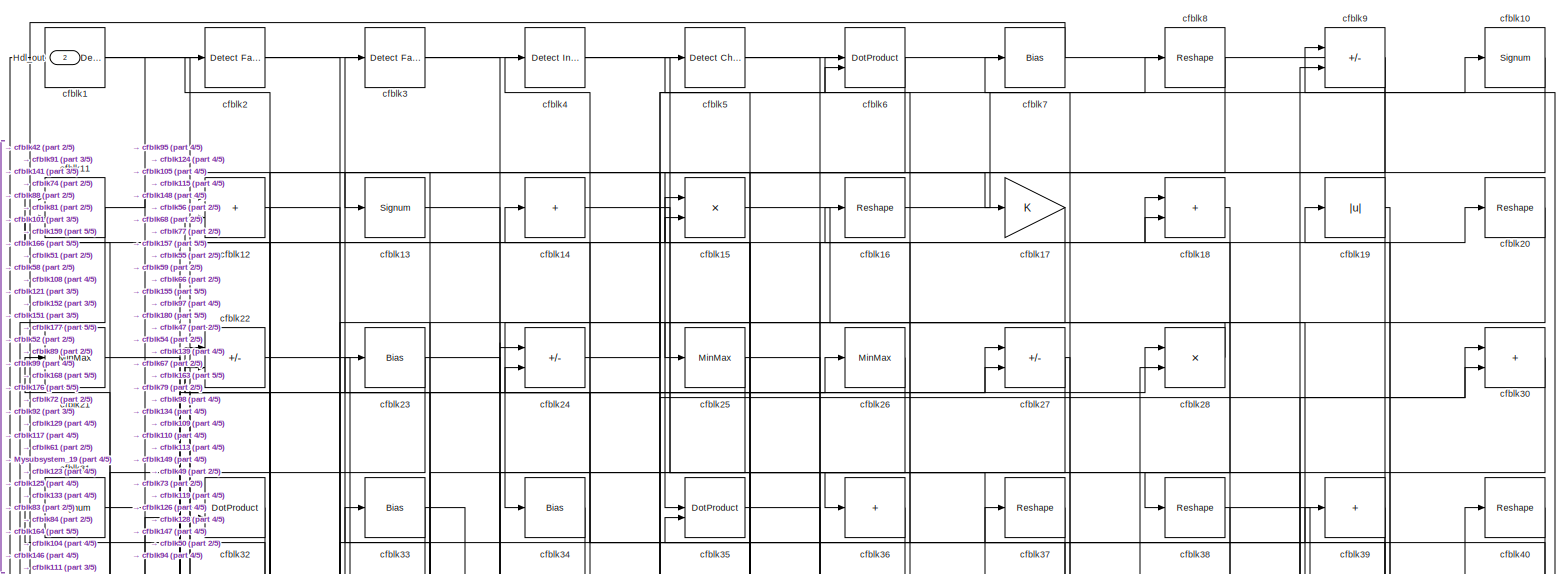
[diagram: root canvas - part 1/5, full width, top band]
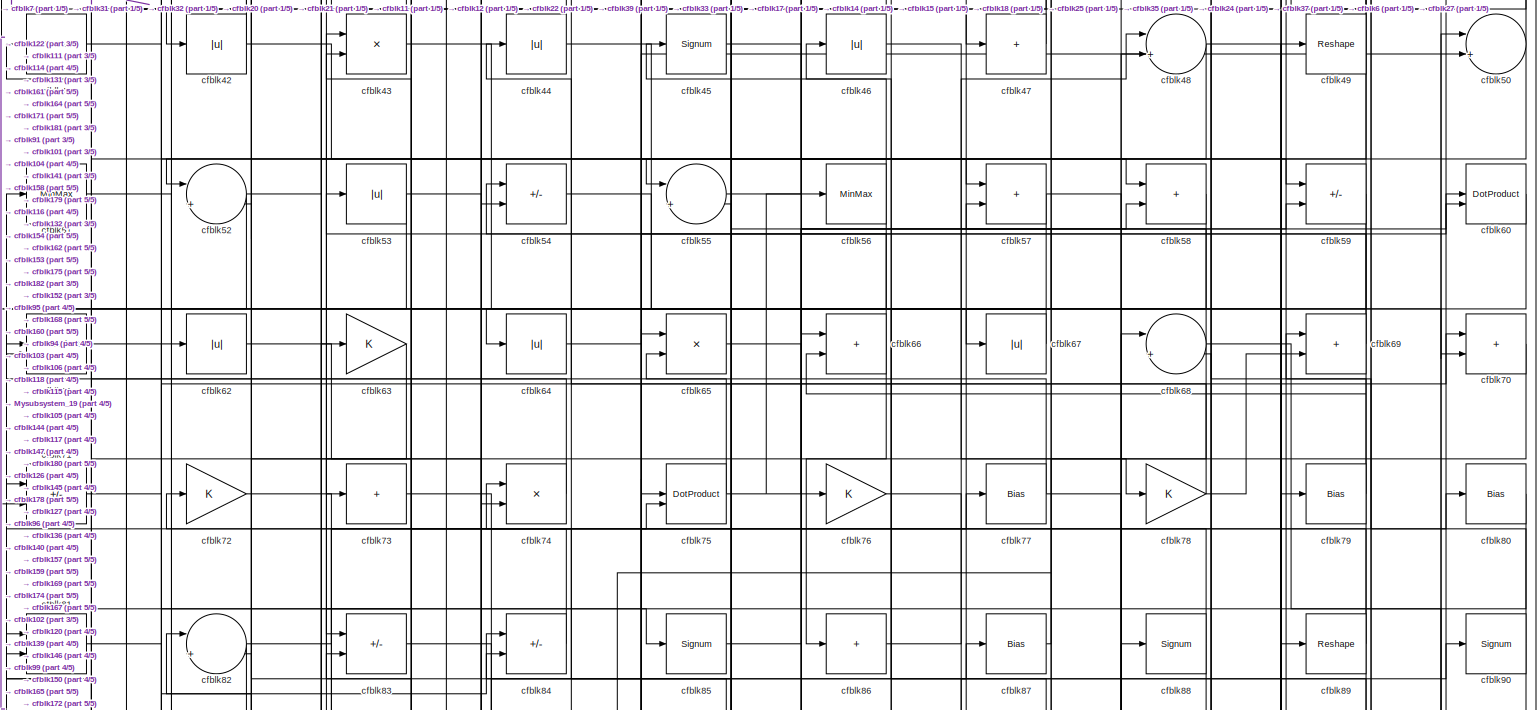
[diagram: root canvas - part 2/5, full width, middle band]
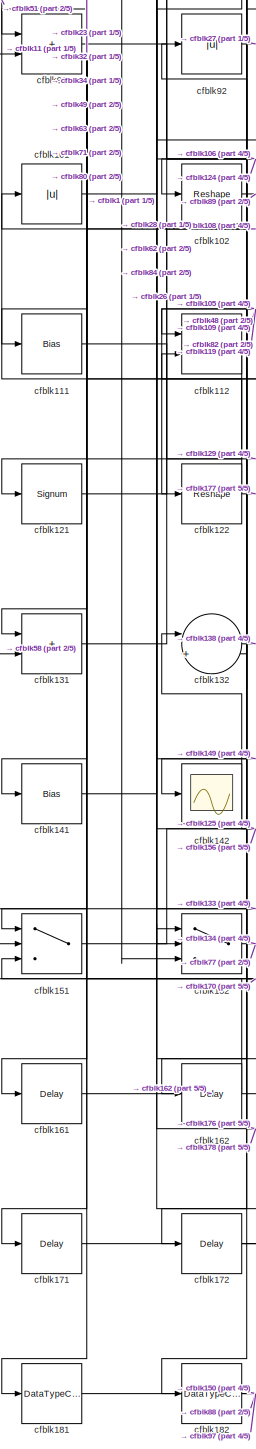
[diagram: root canvas - part 3/5, bottom left region]
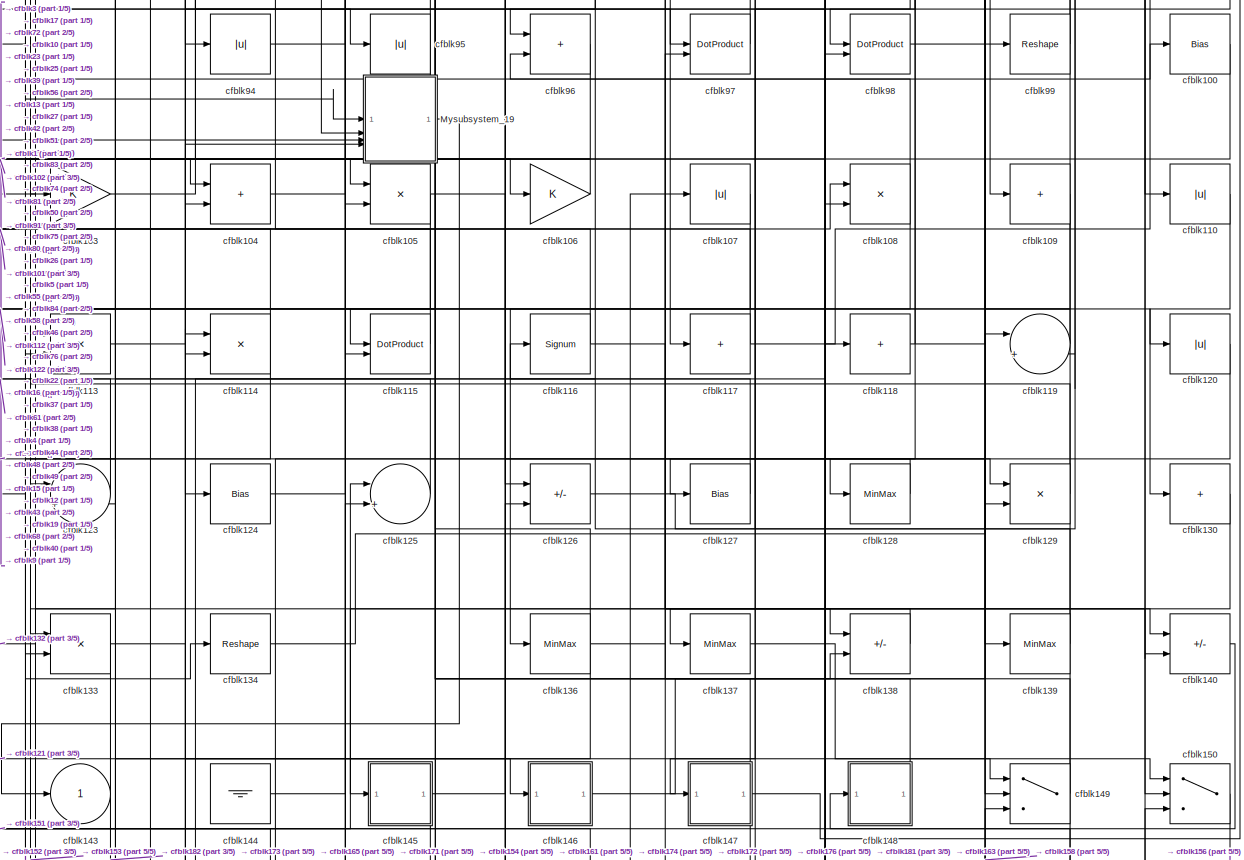
[diagram: root canvas - part 4/5, full width, middle band]
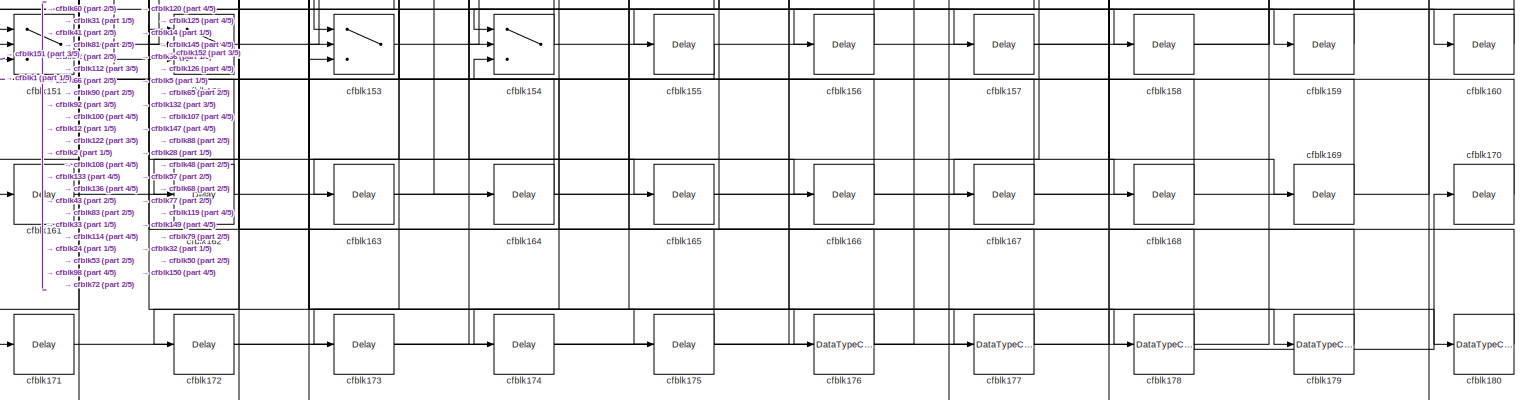
[diagram: root canvas - part 5/5, full width, bottom band]
MODEL slx_0a6103c44369
KIND model
CONFIG AbsTol = auto
CONFIG EnableMultiTasking = off
CONFIG FixedStep = auto
CONFIG MaxStep = auto
CONFIG MinStep = auto
CONFIG RelTol = 1e-3
CONFIG SampleTimeConstraint = Unconstrained
CONFIG SolverName = VariableStepAuto
CONFIG StartTime = 0.0
CONFIG StopTime = 10.0
BLOCK [Outport] Hdl_out
  OutDataTypeStr = uint8
  Port = 2
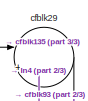
[diagram: Mysubsystem_19 - part 1/3, top right region]
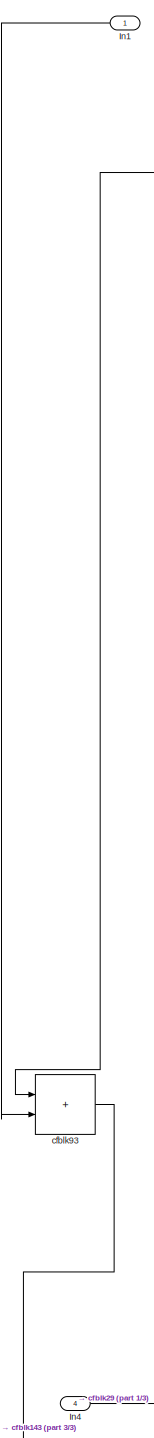
[diagram: Mysubsystem_19 - part 2/3, left side, full height]
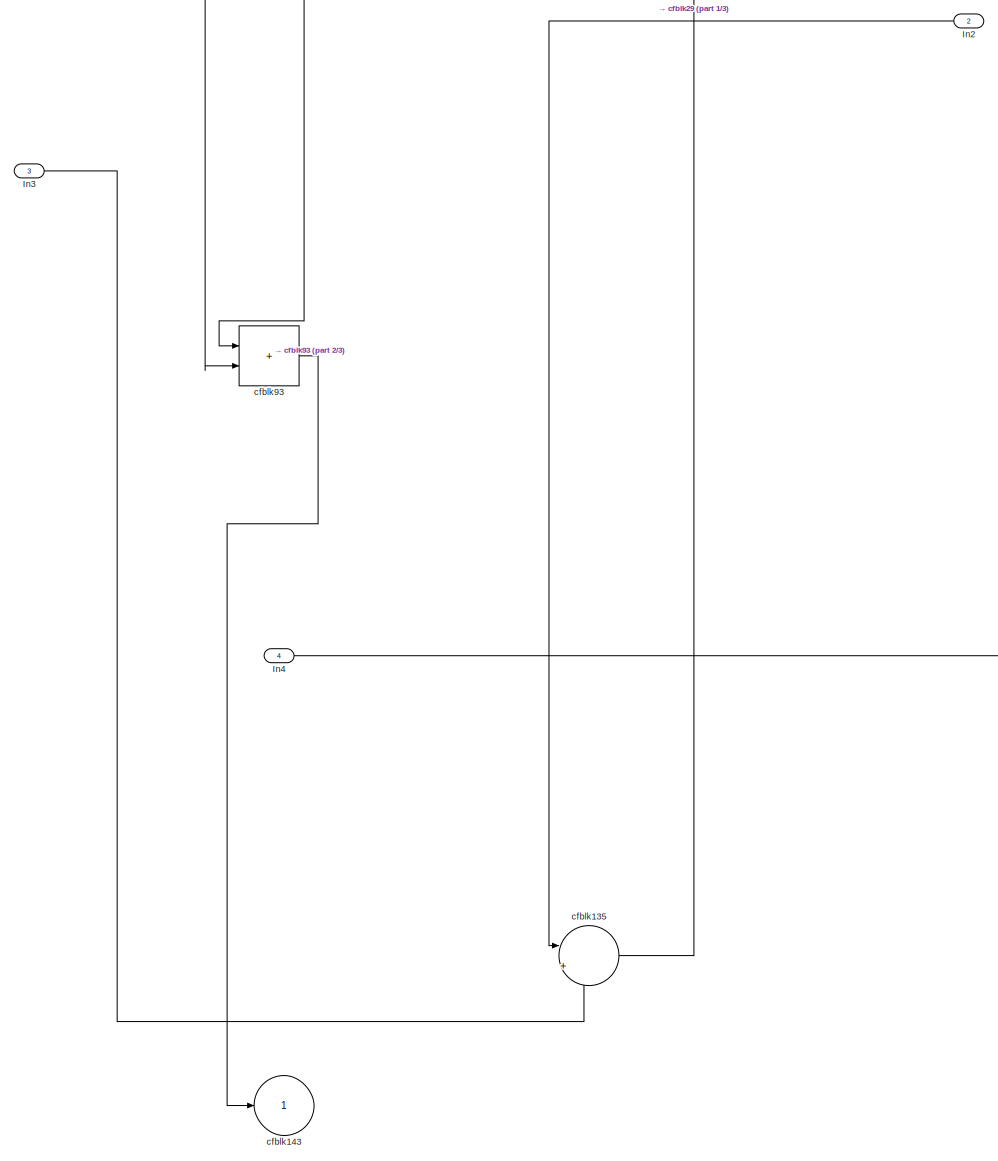
[diagram: Mysubsystem_19 - part 3/3, full width, bottom band]
BLOCK [SubSystem] Mysubsystem_19
  RTWFcnName = Mysubsystem_19
  RTWFcnNameOpts = User specified
  RTWFileNameOpts = Use function name
  RTWSystemCode = Reusable function
  TreatAsAtomicUnit = on
BLOCK [Inport] Mysubsystem_19/In1
BLOCK [Inport] Mysubsystem_19/In2
  Port = 2
BLOCK [Inport] Mysubsystem_19/In3
  Port = 3
BLOCK [Inport] Mysubsystem_19/In4
  Port = 4
BLOCK [Sum] Mysubsystem_19/cfblk135
  Inputs = |++
BLOCK [Outport] Mysubsystem_19/cfblk143
  VectorParamsAs1DForOutWhenUnconnected = off
BLOCK [Sum] Mysubsystem_19/cfblk29
  Inputs = |++
BLOCK [Sum] Mysubsystem_19/cfblk93
  IconShape = rectangular
BLOCK [Reference] cfblk1  REF=simulink/Logic and Bit
Operations/Detect
Decrease
  LibrarySourceBlock = hdlsllib/Logic and Bit\nOperations/Detect\nDecrease
  SourceBlock = simulink/Logic and Bit\nOperations/Detect\nDecrease
  SourceType = Detect Decrease
BLOCK [Signum] cfblk10
BLOCK [Bias] cfblk100
  Bias = 0.0
  SaturateOnIntegerOverflow = off
BLOCK [Abs] cfblk101
  OutDataTypeStr = uint8
  SaturateOnIntegerOverflow = off
BLOCK [Reshape] cfblk102
BLOCK [Gain] cfblk103
  OutDataTypeStr = uint8
BLOCK [Sum] cfblk104
  IconShape = rectangular
  OutDataTypeStr = uint8
BLOCK [Product] cfblk105
  Inputs = */
  OutDataTypeStr = uint8
  RndMeth = Zero
  SaturateOnIntegerOverflow = on
BLOCK [Gain] cfblk106
  OutDataTypeStr = uint8
BLOCK [Abs] cfblk107
  OutDataTypeStr = uint8
  SaturateOnIntegerOverflow = off
BLOCK [Product] cfblk108
  Inputs = */
  OutDataTypeStr = uint8
  RndMeth = Zero
  SaturateOnIntegerOverflow = on
BLOCK [Sum] cfblk109
  IconShape = rectangular
  Inputs = +
  OutDataTypeStr = uint8
BLOCK [Sum] cfblk11
  IconShape = rectangular
  OutDataTypeStr = uint8
BLOCK [Abs] cfblk110
  OutDataTypeStr = uint8
  SaturateOnIntegerOverflow = off
BLOCK [Bias] cfblk111
  Bias = 0.0
  SaturateOnIntegerOverflow = off
BLOCK [Product] cfblk112
  Inputs = */
  OutDataTypeStr = uint8
  RndMeth = Zero
  SaturateOnIntegerOverflow = on
BLOCK [Product] cfblk113
  Inputs = */
  OutDataTypeStr = uint8
  RndMeth = Zero
  SaturateOnIntegerOverflow = on
BLOCK [Product] cfblk114
  Inputs = */
  OutDataTypeStr = uint8
  RndMeth = Zero
  SaturateOnIntegerOverflow = on
BLOCK [DotProduct] cfblk115
  OutDataTypeStr = uint8
BLOCK [Signum] cfblk116
BLOCK [Sum] cfblk117
  IconShape = rectangular
  Inputs = +
  OutDataTypeStr = uint8
BLOCK [Sum] cfblk118
  IconShape = rectangular
  Inputs = +
  OutDataTypeStr = uint8
BLOCK [Sum] cfblk119
  Inputs = |++
  OutDataTypeStr = uint8
BLOCK [Sum] cfblk12
  IconShape = rectangular
  OutDataTypeStr = uint8
BLOCK [Abs] cfblk120
  OutDataTypeStr = uint8
  SaturateOnIntegerOverflow = off
BLOCK [Signum] cfblk121
BLOCK [Reshape] cfblk122
BLOCK [Sum] cfblk123
  Inputs = |++
  OutDataTypeStr = uint8
BLOCK [Bias] cfblk124
  Bias = 0.0
  SaturateOnIntegerOverflow = off
BLOCK [Sum] cfblk125
  Inputs = |++
  OutDataTypeStr = uint8
BLOCK [Sum] cfblk126
  IconShape = rectangular
  Inputs = +-
  OutDataTypeStr = uint8
BLOCK [Bias] cfblk127
  Bias = 0.0
  SaturateOnIntegerOverflow = off
BLOCK [MinMax] cfblk128
  OutDataTypeStr = uint8
BLOCK [Product] cfblk129
  Inputs = */
  OutDataTypeStr = uint8
  RndMeth = Zero
  SaturateOnIntegerOverflow = on
BLOCK [Signum] cfblk13
BLOCK [Sum] cfblk130
  IconShape = rectangular
  Inputs = +
  OutDataTypeStr = uint8
BLOCK [Sum] cfblk131
  IconShape = rectangular
  OutDataTypeStr = uint8
BLOCK [Sum] cfblk132
  Inputs = |++
  OutDataTypeStr = uint8
BLOCK [Product] cfblk133
  Inputs = */
  OutDataTypeStr = uint8
  RndMeth = Zero
  SaturateOnIntegerOverflow = on
BLOCK [Reshape] cfblk134
BLOCK [MinMax] cfblk136
  OutDataTypeStr = uint8
BLOCK [MinMax] cfblk137
  OutDataTypeStr = uint8
BLOCK [Sum] cfblk138
  IconShape = rectangular
  Inputs = +-
  OutDataTypeStr = uint8
BLOCK [MinMax] cfblk139
  OutDataTypeStr = uint8
BLOCK [Sum] cfblk14
  IconShape = rectangular
  Inputs = +
  OutDataTypeStr = uint8
BLOCK [Sum] cfblk140
  IconShape = rectangular
  Inputs = +-
  OutDataTypeStr = uint8
BLOCK [Bias] cfblk141
  Bias = 0.0
  SaturateOnIntegerOverflow = off
BLOCK [Scope] cfblk142
  Floating = off
  NumInputPorts = 1
  ScopeSpecificationString = Simulink.scopes.TimeScopeBlockCfg('CurrentConfiguration', extmgr.ConfigurationSet(extmgr.Configuration('Core','General UI',true),extmgr.Configuration('Core','Source UI',true),extmgr.Configuration('Sources','WiredSimulink',true,'DataLoggingVariableName','ScopeData2','DataLoggingSaveFormat','Array','DataLoggingLimitDataPoints',true,'DataLoggingDecimation','1'),extmgr.Configuration('Visuals','Time Do...<+868ch>
BLOCK [Outport] cfblk143
  OutDataTypeStr = uint8
  VectorParamsAs1DForOutWhenUnconnected = off
BLOCK [Ground] cfblk144
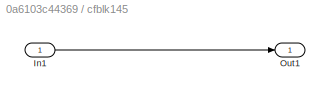
BLOCK [SubSystem] cfblk145
  LibrarySourceBlock = hdlsllib/Ports &\nSubsystems/Subsystem
BLOCK [Inport] cfblk145/In1
BLOCK [Outport] cfblk145/Out1
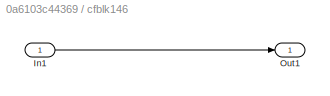
BLOCK [SubSystem] cfblk146
  LibrarySourceBlock = hdlsllib/Ports &\nSubsystems/Subsystem
BLOCK [Inport] cfblk146/In1
BLOCK [Outport] cfblk146/Out1
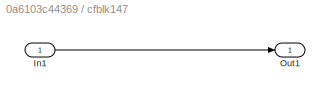
BLOCK [SubSystem] cfblk147
  LibrarySourceBlock = hdlsllib/Ports &\nSubsystems/Subsystem
BLOCK [Inport] cfblk147/In1
BLOCK [Outport] cfblk147/Out1
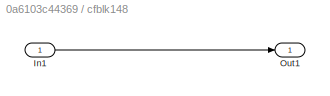
BLOCK [SubSystem] cfblk148
  LibrarySourceBlock = hdlsllib/Ports &\nSubsystems/Subsystem
BLOCK [Inport] cfblk148/In1
BLOCK [Outport] cfblk148/Out1
BLOCK [Switch] cfblk149
  InputSameDT = off
  OutDataTypeStr = uint8
  SaturateOnIntegerOverflow = off
BLOCK [Product] cfblk15
  Inputs = */
  OutDataTypeStr = uint8
  RndMeth = Zero
  SaturateOnIntegerOverflow = on
BLOCK [Switch] cfblk150
  InputSameDT = off
  OutDataTypeStr = uint8
  SaturateOnIntegerOverflow = off
BLOCK [Switch] cfblk151
  InputSameDT = off
  OutDataTypeStr = uint8
  SaturateOnIntegerOverflow = off
BLOCK [Switch] cfblk152
  InputSameDT = off
  OutDataTypeStr = uint8
  SaturateOnIntegerOverflow = off
BLOCK [Switch] cfblk153
  InputSameDT = off
  OutDataTypeStr = uint8
  SaturateOnIntegerOverflow = off
BLOCK [Switch] cfblk154
  InputSameDT = off
  OutDataTypeStr = uint8
  SaturateOnIntegerOverflow = off
BLOCK [Delay] cfblk155
  InputPortMap = u0
  SampleTime = 1
BLOCK [Delay] cfblk156
  InputPortMap = u0
  SampleTime = 1
BLOCK [Delay] cfblk157
  InputPortMap = u0
  SampleTime = 1
BLOCK [Delay] cfblk158
  InputPortMap = u0
  SampleTime = 1
BLOCK [Delay] cfblk159
  InputPortMap = u0
  SampleTime = 1
BLOCK [Reshape] cfblk16
BLOCK [Delay] cfblk160
  InputPortMap = u0
  SampleTime = 1
BLOCK [Delay] cfblk161
  InputPortMap = u0
  SampleTime = 1
BLOCK [Delay] cfblk162
  InputPortMap = u0
  SampleTime = 1
BLOCK [Delay] cfblk163
  InputPortMap = u0
  SampleTime = 1
BLOCK [Delay] cfblk164
  InputPortMap = u0
  SampleTime = 1
BLOCK [Delay] cfblk165
  InputPortMap = u0
  SampleTime = 1
BLOCK [Delay] cfblk166
  InputPortMap = u0
  SampleTime = 1
BLOCK [Delay] cfblk167
  InputPortMap = u0
  SampleTime = 1
BLOCK [Delay] cfblk168
  InputPortMap = u0
  SampleTime = 1
BLOCK [Delay] cfblk169
  InputPortMap = u0
  SampleTime = 1
BLOCK [Gain] cfblk17
  OutDataTypeStr = uint8
BLOCK [Delay] cfblk170
  InputPortMap = u0
  SampleTime = 1
BLOCK [Delay] cfblk171
  InputPortMap = u0
  SampleTime = 1
BLOCK [Delay] cfblk172
  InputPortMap = u0
  SampleTime = 1
BLOCK [Delay] cfblk173
  InputPortMap = u0
  SampleTime = 1
BLOCK [Delay] cfblk174
  InputPortMap = u0
  SampleTime = 1
BLOCK [Delay] cfblk175
  InputPortMap = u0
  SampleTime = 1
BLOCK [DataTypeConversion] cfblk176
  OutDataTypeStr = uint8
  RndMeth = Floor
  SaturateOnIntegerOverflow = off
BLOCK [DataTypeConversion] cfblk177
  OutDataTypeStr = uint8
  RndMeth = Floor
  SaturateOnIntegerOverflow = off
BLOCK [DataTypeConversion] cfblk178
  OutDataTypeStr = uint8
  RndMeth = Floor
  SaturateOnIntegerOverflow = off
BLOCK [DataTypeConversion] cfblk179
  OutDataTypeStr = uint8
  RndMeth = Floor
  SaturateOnIntegerOverflow = off
BLOCK [Sum] cfblk18
  IconShape = rectangular
  OutDataTypeStr = uint8
BLOCK [DataTypeConversion] cfblk180
  OutDataTypeStr = uint8
  RndMeth = Floor
  SaturateOnIntegerOverflow = off
BLOCK [DataTypeConversion] cfblk181
  OutDataTypeStr = uint8
  RndMeth = Floor
  SaturateOnIntegerOverflow = off
BLOCK [DataTypeConversion] cfblk182
  OutDataTypeStr = uint8
  RndMeth = Floor
  SaturateOnIntegerOverflow = off
BLOCK [Abs] cfblk19
  OutDataTypeStr = uint8
  SaturateOnIntegerOverflow = off
BLOCK [Reference] cfblk2  REF=hdlsllib/Logic and Bit
Operations/Detect Fall
Nonpositive
  SourceBlock = hdlsllib/Logic and Bit\nOperations/Detect Fall\nNonpositive
  SourceType = Detect Fall Nonpositive
BLOCK [Reshape] cfblk20
BLOCK [MinMax] cfblk21
  OutDataTypeStr = uint8
BLOCK [Sum] cfblk22
  IconShape = rectangular
  Inputs = +-
  OutDataTypeStr = uint8
BLOCK [Bias] cfblk23
  Bias = 0.0
  SaturateOnIntegerOverflow = off
BLOCK [Sum] cfblk24
  IconShape = rectangular
  Inputs = +-
  OutDataTypeStr = uint8
BLOCK [MinMax] cfblk25
  OutDataTypeStr = uint8
BLOCK [MinMax] cfblk26
  OutDataTypeStr = uint8
BLOCK [Sum] cfblk27
  IconShape = rectangular
  Inputs = +-
  OutDataTypeStr = uint8
BLOCK [Product] cfblk28
  Inputs = */
  OutDataTypeStr = uint8
  RndMeth = Zero
  SaturateOnIntegerOverflow = on
BLOCK [Reference] cfblk3  REF=hdlsllib/Logic and Bit
Operations/Detect Fall
Negative
  SourceBlock = hdlsllib/Logic and Bit\nOperations/Detect Fall\nNegative
  SourceType = Detect Fall Negative
BLOCK [Sum] cfblk30
  IconShape = rectangular
  OutDataTypeStr = uint8
BLOCK [Signum] cfblk31
BLOCK [DotProduct] cfblk32
  OutDataTypeStr = uint8
BLOCK [Bias] cfblk33
  Bias = 0.0
  SaturateOnIntegerOverflow = off
BLOCK [Bias] cfblk34
  Bias = 0.0
  SaturateOnIntegerOverflow = off
BLOCK [DotProduct] cfblk35
  OutDataTypeStr = uint8
BLOCK [Sum] cfblk36
  IconShape = rectangular
  Inputs = +
  OutDataTypeStr = uint8
BLOCK [Reshape] cfblk37
BLOCK [Reshape] cfblk38
BLOCK [Sum] cfblk39
  IconShape = rectangular
  Inputs = +
  OutDataTypeStr = uint8
BLOCK [Reference] cfblk4  REF=simulink/Logic and Bit
Operations/Detect
Increase
  LibrarySourceBlock = hdlsllib/Logic and Bit\nOperations/Detect\nIncrease
  SourceBlock = simulink/Logic and Bit\nOperations/Detect\nIncrease
  SourceType = Detect Increase
BLOCK [Reshape] cfblk40
BLOCK [MinMax] cfblk41
  OutDataTypeStr = uint8
BLOCK [Abs] cfblk42
  OutDataTypeStr = uint8
  SaturateOnIntegerOverflow = off
BLOCK [Product] cfblk43
  Inputs = */
  OutDataTypeStr = uint8
  RndMeth = Zero
  SaturateOnIntegerOverflow = on
BLOCK [Abs] cfblk44
  OutDataTypeStr = uint8
  SaturateOnIntegerOverflow = off
BLOCK [Signum] cfblk45
BLOCK [Abs] cfblk46
  OutDataTypeStr = uint8
  SaturateOnIntegerOverflow = off
BLOCK [Sum] cfblk47
  IconShape = rectangular
  Inputs = +
  OutDataTypeStr = uint8
BLOCK [Sum] cfblk48
  Inputs = |++
  OutDataTypeStr = uint8
BLOCK [Reshape] cfblk49
BLOCK [Reference] cfblk5  REF=simulink/Logic and Bit
Operations/Detect
Change
  LibrarySourceBlock = hdlsllib/Logic and Bit\nOperations/Detect\nChange
  SourceBlock = simulink/Logic and Bit\nOperations/Detect\nChange
  SourceType = Detect Change
BLOCK [Sum] cfblk50
  Inputs = |++
  OutDataTypeStr = uint8
BLOCK [MinMax] cfblk51
  OutDataTypeStr = uint8
BLOCK [Sum] cfblk52
  Inputs = |++
  OutDataTypeStr = uint8
BLOCK [Abs] cfblk53
  OutDataTypeStr = uint8
  SaturateOnIntegerOverflow = off
BLOCK [Sum] cfblk54
  IconShape = rectangular
  Inputs = +-
  OutDataTypeStr = uint8
BLOCK [Sum] cfblk55
  Inputs = |++
  OutDataTypeStr = uint8
BLOCK [MinMax] cfblk56
  OutDataTypeStr = uint8
BLOCK [Sum] cfblk57
  IconShape = rectangular
  OutDataTypeStr = uint8
BLOCK [Sum] cfblk58
  IconShape = rectangular
  OutDataTypeStr = uint8
BLOCK [Sum] cfblk59
  IconShape = rectangular
  Inputs = +-
  OutDataTypeStr = uint8
BLOCK [DotProduct] cfblk6
  OutDataTypeStr = uint8
BLOCK [DotProduct] cfblk60
  OutDataTypeStr = uint8
BLOCK [DotProduct] cfblk61
  OutDataTypeStr = uint8
BLOCK [Abs] cfblk62
  OutDataTypeStr = uint8
  SaturateOnIntegerOverflow = off
BLOCK [Gain] cfblk63
  OutDataTypeStr = uint8
BLOCK [Abs] cfblk64
  OutDataTypeStr = uint8
  SaturateOnIntegerOverflow = off
BLOCK [Product] cfblk65
  Inputs = */
  OutDataTypeStr = uint8
  RndMeth = Zero
  SaturateOnIntegerOverflow = on
BLOCK [Sum] cfblk66
  IconShape = rectangular
  OutDataTypeStr = uint8
BLOCK [Abs] cfblk67
  OutDataTypeStr = uint8
  SaturateOnIntegerOverflow = off
BLOCK [Sum] cfblk68
  Inputs = |++
  OutDataTypeStr = uint8
BLOCK [Sum] cfblk69
  IconShape = rectangular
  OutDataTypeStr = uint8
BLOCK [Bias] cfblk7
  Bias = 0.0
  SaturateOnIntegerOverflow = off
BLOCK [Sum] cfblk70
  IconShape = rectangular
  OutDataTypeStr = uint8
BLOCK [Sum] cfblk71
  IconShape = rectangular
  Inputs = +-
  OutDataTypeStr = uint8
BLOCK [Gain] cfblk72
  OutDataTypeStr = uint8
BLOCK [Sum] cfblk73
  IconShape = rectangular
  Inputs = +
  OutDataTypeStr = uint8
BLOCK [Product] cfblk74
  Inputs = */
  OutDataTypeStr = uint8
  RndMeth = Zero
  SaturateOnIntegerOverflow = on
BLOCK [DotProduct] cfblk75
  OutDataTypeStr = uint8
BLOCK [Gain] cfblk76
  OutDataTypeStr = uint8
BLOCK [Bias] cfblk77
  Bias = 0.0
  SaturateOnIntegerOverflow = off
BLOCK [Gain] cfblk78
  OutDataTypeStr = uint8
BLOCK [Bias] cfblk79
  Bias = 0.0
  SaturateOnIntegerOverflow = off
BLOCK [Reshape] cfblk8
BLOCK [Bias] cfblk80
  Bias = 0.0
  SaturateOnIntegerOverflow = off
BLOCK [Product] cfblk81
  Inputs = */
  OutDataTypeStr = uint8
  RndMeth = Zero
  SaturateOnIntegerOverflow = on
BLOCK [Sum] cfblk82
  Inputs = |++
  OutDataTypeStr = uint8
BLOCK [Sum] cfblk83
  IconShape = rectangular
  Inputs = +-
  OutDataTypeStr = uint8
BLOCK [Sum] cfblk84
  IconShape = rectangular
  Inputs = +-
  OutDataTypeStr = uint8
BLOCK [Signum] cfblk85
BLOCK [Sum] cfblk86
  IconShape = rectangular
  Inputs = +
  OutDataTypeStr = uint8
BLOCK [Bias] cfblk87
  Bias = 0.0
  SaturateOnIntegerOverflow = off
BLOCK [Signum] cfblk88
BLOCK [Reshape] cfblk89
BLOCK [Sum] cfblk9
  IconShape = rectangular
  Inputs = +-
  OutDataTypeStr = uint8
BLOCK [Signum] cfblk90
BLOCK [Sum] cfblk91
  IconShape = rectangular
  OutDataTypeStr = uint8
BLOCK [Abs] cfblk92
  OutDataTypeStr = uint8
  SaturateOnIntegerOverflow = off
BLOCK [Abs] cfblk94
  OutDataTypeStr = uint8
  SaturateOnIntegerOverflow = off
BLOCK [Abs] cfblk95
  OutDataTypeStr = uint8
  SaturateOnIntegerOverflow = off
BLOCK [Sum] cfblk96
  IconShape = rectangular
  OutDataTypeStr = uint8
BLOCK [DotProduct] cfblk97
  OutDataTypeStr = uint8
BLOCK [DotProduct] cfblk98
  OutDataTypeStr = uint8
BLOCK [Reshape] cfblk99
LINE Mysubsystem_19/In1:1 -> Mysubsystem_19/cfblk93:2
LINE Mysubsystem_19/In2:1 -> Mysubsystem_19/cfblk135:1
LINE Mysubsystem_19/In3:1 -> Mysubsystem_19/cfblk135:2
LINE Mysubsystem_19/In4:1 -> Mysubsystem_19/cfblk29:2
LINE Mysubsystem_19/cfblk135:1 -> Mysubsystem_19/cfblk29:1
LINE Mysubsystem_19/cfblk29:1 -> Mysubsystem_19/cfblk93:1
LINE Mysubsystem_19/cfblk93:1 -> Mysubsystem_19/cfblk143:1
LINE Mysubsystem_19:1 -> cfblk143:1
LINE cfblk100:1 -> cfblk153:2
NET cfblk101:1 -> cfblk28:1, cfblk84:1
LINE cfblk102:1 -> cfblk89:1
LINE cfblk103:1 -> cfblk87:1
LINE cfblk104:1 -> cfblk80:1
NET cfblk105:1 -> cfblk129:2, cfblk142:1
LINE cfblk106:1 -> cfblk102:1
LINE cfblk107:1 -> cfblk136:1
NET cfblk108:1 -> cfblk153:1, cfblk96:2
LINE cfblk109:1 -> cfblk122:1
NET cfblk10:1 -> cfblk133:1, cfblk13:1
LINE cfblk110:1 -> cfblk130:1
NET cfblk111:1 -> cfblk129:1, cfblk71:1
LINE cfblk112:1 -> cfblk121:1
LINE cfblk113:1 -> Mysubsystem_19:4
NET cfblk114:1 -> cfblk133:2, cfblk81:1
LINE cfblk115:1 -> cfblk74:1
NET cfblk116:1 -> cfblk140:2, cfblk82:2
NET cfblk117:1 -> cfblk40:1, cfblk55:2
NET cfblk118:1 -> cfblk100:1, cfblk68:2
LINE cfblk119:1 -> cfblk112:1
NET cfblk11:1 -> cfblk12:1, cfblk91:2
NET cfblk120:1 -> cfblk149:2, cfblk154:1
NET cfblk121:1 -> cfblk149:1, cfblk26:1
NET cfblk122:1 -> cfblk177:1, cfblk51:1
LINE cfblk123:1 -> cfblk22:1
LINE cfblk124:1 -> cfblk30:1
LINE cfblk125:1 -> cfblk23:1
LINE cfblk126:1 -> cfblk19:1
NET cfblk127:1 -> cfblk46:1, cfblk61:2
LINE cfblk128:1 -> cfblk127:1
LINE cfblk129:1 -> cfblk3:1
NET cfblk12:1 -> cfblk168:1, cfblk52:2
LINE cfblk130:1 -> cfblk145:1
LINE cfblk131:1 -> cfblk108:1
LINE cfblk132:1 -> cfblk138:1
NET cfblk133:1 -> cfblk165:1, cfblk182:1
LINE cfblk134:1 -> cfblk9:2
NET cfblk136:1 -> cfblk138:2, cfblk173:1, cfblk45:1, cfblk90:1
LINE cfblk137:1 -> cfblk150:1
LINE cfblk138:1 -> cfblk137:1
NET cfblk139:1 -> cfblk116:1, cfblk37:1
LINE cfblk13:1 -> cfblk146:1
LINE cfblk140:1 -> cfblk148:1
LINE cfblk141:1 -> cfblk62:1
LINE cfblk144:1 -> cfblk75:1
LINE cfblk145/In1:1 -> cfblk145/Out1:1
NET cfblk145:1 -> cfblk174:1, cfblk58:2
LINE cfblk146/In1:1 -> cfblk146/Out1:1
LINE cfblk146:1 -> cfblk49:1
LINE cfblk147/In1:1 -> cfblk147/Out1:1
NET cfblk147:1 -> cfblk163:1, cfblk84:2, cfblk9:1
LINE cfblk148/In1:1 -> cfblk148/Out1:1
LINE cfblk148:1 -> cfblk5:1
NET cfblk149:1 -> Hdl_out:1, cfblk101:1, cfblk151:2
NET cfblk14:1 -> cfblk180:1, cfblk47:1
LINE cfblk150:1 -> cfblk156:1
LINE cfblk151:1 -> cfblk125:1
NET cfblk152:1 -> cfblk134:1, cfblk77:1
LINE cfblk153:1 -> cfblk98:2
NET cfblk154:1 -> cfblk72:1, cfblk79:1
LINE cfblk155:1 -> cfblk1:1
LINE cfblk156:1 -> cfblk132:1
LINE cfblk157:1 -> cfblk68:1
LINE cfblk158:1 -> cfblk119:1
LINE cfblk159:1 -> cfblk32:1
LINE cfblk15:1 -> cfblk109:1
LINE cfblk160:1 -> cfblk154:2
LINE cfblk161:1 -> cfblk125:2
LINE cfblk162:1 -> cfblk151:3
LINE cfblk163:1 -> cfblk28:2
LINE cfblk164:1 -> cfblk81:2
LINE cfblk165:1 -> cfblk50:1
LINE cfblk166:1 -> cfblk24:1
LINE cfblk167:1 -> cfblk83:2
LINE cfblk168:1 -> cfblk43:2
LINE cfblk169:1 -> cfblk82:1
LINE cfblk16:1 -> cfblk8:1
LINE cfblk170:1 -> cfblk112:2
LINE cfblk171:1 -> cfblk114:1
LINE cfblk172:1 -> cfblk126:2
LINE cfblk173:1 -> cfblk149:3
LINE cfblk174:1 -> cfblk48:2
LINE cfblk175:1 -> cfblk154:3
NET cfblk176:1 -> cfblk107:1, cfblk92:1
LINE cfblk177:1 -> cfblk2:1
NET cfblk178:1 -> cfblk152:1, cfblk170:1
LINE cfblk179:1 -> cfblk65:1
NET cfblk17:1 -> Mysubsystem_19:1, cfblk83:1
LINE cfblk180:1 -> cfblk65:2
NET cfblk181:1 -> cfblk150:3, cfblk88:1, cfblk97:2
LINE cfblk182:1 -> cfblk63:1
LINE cfblk18:1 -> cfblk38:1
LINE cfblk19:1 -> cfblk119:2
NET cfblk1:1 -> cfblk108:2, cfblk152:3, cfblk17:1
LINE cfblk20:1 -> cfblk34:1
LINE cfblk21:1 -> cfblk58:1
LINE cfblk22:1 -> cfblk117:1
NET cfblk23:1 -> cfblk141:1, cfblk27:2
LINE cfblk24:1 -> cfblk10:1
NET cfblk25:1 -> cfblk123:1, cfblk59:1
LINE cfblk26:1 -> cfblk115:1
NET cfblk27:1 -> cfblk104:2, cfblk67:1
LINE cfblk28:1 -> cfblk25:1
LINE cfblk2:1 -> cfblk176:1
LINE cfblk30:1 -> cfblk36:1
LINE cfblk31:1 -> cfblk166:1
LINE cfblk32:1 -> cfblk151:1
NET cfblk33:1 -> cfblk164:1, cfblk61:1
LINE cfblk34:1 -> cfblk111:1
LINE cfblk35:1 -> cfblk66:1
LINE cfblk36:1 -> cfblk155:1
LINE cfblk37:1 -> cfblk54:2
NET cfblk38:1 -> cfblk110:1, cfblk98:1
NET cfblk39:1 -> cfblk113:1, cfblk73:1
LINE cfblk3:1 -> cfblk97:1
LINE cfblk40:1 -> cfblk128:1
LINE cfblk41:1 -> cfblk179:1
NET cfblk42:1 -> cfblk11:2, cfblk94:1
LINE cfblk43:1 -> cfblk126:1
LINE cfblk44:1 -> cfblk139:1
LINE cfblk45:1 -> cfblk70:2
LINE cfblk46:1 -> cfblk78:1
NET cfblk47:1 -> cfblk24:2, cfblk6:2
NET cfblk48:1 -> cfblk120:1, cfblk132:2
NET cfblk49:1 -> cfblk7:1, cfblk91:1
LINE cfblk4:1 -> cfblk99:1
NET cfblk50:1 -> cfblk105:2, cfblk14:1
NET cfblk51:1 -> cfblk114:2, cfblk20:1
NET cfblk52:1 -> cfblk57:1, cfblk71:2
NET cfblk53:1 -> cfblk160:1, cfblk161:1
LINE cfblk54:1 -> cfblk76:1
LINE cfblk55:1 -> cfblk18:1
NET cfblk56:1 -> cfblk103:1, cfblk15:1, cfblk55:1
NET cfblk57:1 -> cfblk153:3, cfblk159:1
LINE cfblk58:1 -> cfblk131:2
LINE cfblk59:1 -> cfblk96:1
LINE cfblk5:1 -> cfblk157:1
LINE cfblk60:1 -> cfblk171:1
NET cfblk61:1 -> Mysubsystem_19:3, cfblk85:1
LINE cfblk62:1 -> cfblk74:2
LINE cfblk63:1 -> cfblk181:1
NET cfblk64:1 -> cfblk50:2, cfblk60:2
LINE cfblk65:1 -> cfblk178:1
NET cfblk66:1 -> cfblk162:1, cfblk53:1
LINE cfblk67:1 -> cfblk64:1
NET cfblk68:1 -> cfblk11:1, cfblk150:2, cfblk15:2, cfblk86:1
LINE cfblk69:1 -> cfblk54:1
NET cfblk6:1 -> cfblk115:2, cfblk52:1
NET cfblk70:1 -> Mysubsystem_19:2, cfblk147:1
LINE cfblk71:1 -> cfblk70:1
NET cfblk72:1 -> cfblk39:1, cfblk95:1
LINE cfblk73:1 -> cfblk106:1
LINE cfblk74:1 -> cfblk21:1
NET cfblk75:1 -> cfblk41:1, cfblk56:1, cfblk60:1
LINE cfblk76:1 -> cfblk140:1
NET cfblk77:1 -> cfblk169:1, cfblk35:2
NET cfblk78:1 -> cfblk44:1, cfblk69:2
NET cfblk79:1 -> cfblk18:2, cfblk66:2
LINE cfblk7:1 -> cfblk42:1
LINE cfblk80:1 -> cfblk131:1
NET cfblk81:1 -> cfblk104:1, cfblk158:1, cfblk32:2
NET cfblk82:1 -> cfblk152:2, cfblk175:1, cfblk75:2
LINE cfblk83:1 -> cfblk118:1
LINE cfblk84:1 -> cfblk33:1
LINE cfblk85:1 -> cfblk59:2
LINE cfblk86:1 -> cfblk48:1
LINE cfblk87:1 -> cfblk57:2
NET cfblk88:1 -> cfblk167:1, cfblk31:1
LINE cfblk89:1 -> cfblk22:2
LINE cfblk8:1 -> cfblk35:1
NET cfblk90:1 -> cfblk172:1, cfblk69:1
LINE cfblk91:1 -> cfblk124:1
LINE cfblk92:1 -> cfblk27:1
LINE cfblk94:1 -> cfblk6:1
NET cfblk95:1 -> cfblk123:2, cfblk4:1
LINE cfblk96:1 -> cfblk113:2
LINE cfblk97:1 -> cfblk16:1
LINE cfblk98:1 -> cfblk30:2
NET cfblk99:1 -> cfblk12:2, cfblk43:1
LINE cfblk9:1 -> cfblk105:1
note: NET lines group one-source signal fan-out (src -> all destinations, sorted); 1:1 wires keep LINE
